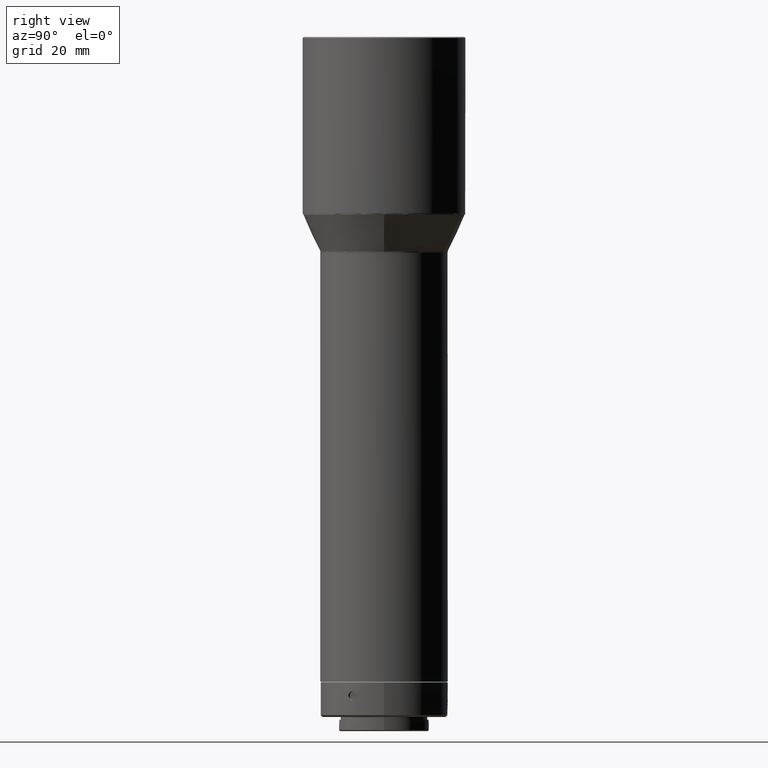
[diagram: clean part render]
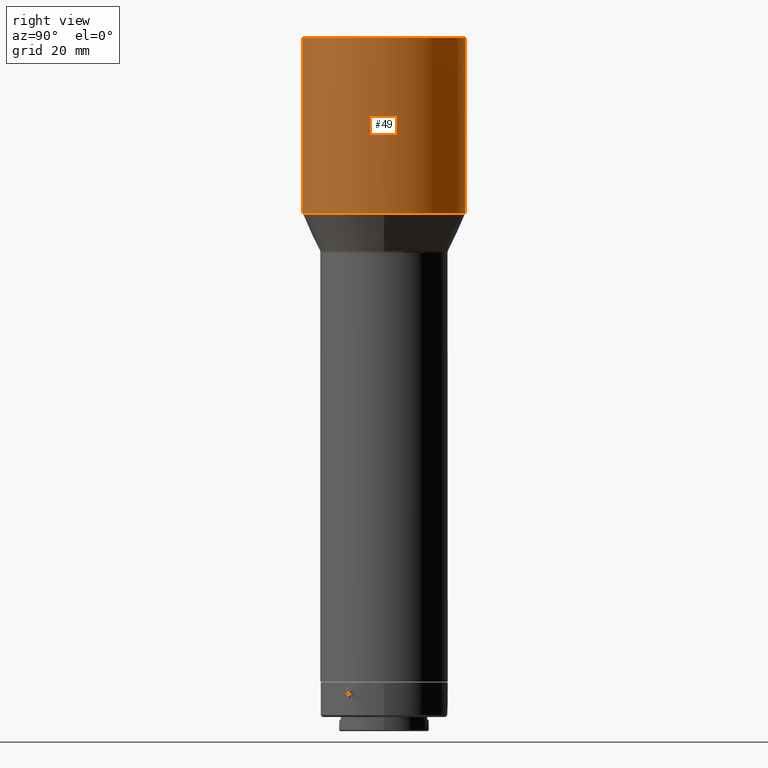
[diagram: same view with one face highlighted and labeled with its STEP entity id]
A machine part, right view. The second image highlights one B-rep face of the part: STEP entity #49.
In plain terms, the highlighted cylindrical surface (bore or boss wall) has radius 23 mm, axis along (0, -0, 1).
Its self-contained STEP definition (entity closure, byte-faithful):
#19 = EDGE_CURVE ( 'NONE', #194, #194, #786, .T. ) ;
#39 = FACE_OUTER_BOUND ( 'NONE', #248, .T. ) ;
#49 = ADVANCED_FACE ( 'NONE', ( #602, #39 ), #768, .T. ) ;
#62 = AXIS2_PLACEMENT_3D ( 'NONE', #597, #269, #655 ) ;
#77 = DIRECTION ( 'NONE',  ( -5.551115123125790098E-17, 3.053113317719188375E-16, -1.000000000000000000 ) ) ;
#78 = CARTESIAN_POINT ( 'NONE',  ( -7.228811143606403814E-14, -23.00000000000008527, -610.2999999999999545 ) ) ;
#150 = AXIS2_PLACEMENT_3D ( 'NONE', #710, #77, #260 ) ;
#194 = VERTEX_POINT ( 'NONE', #78 ) ;
#248 = EDGE_LOOP ( 'NONE', ( #517 ) ) ;
#260 = DIRECTION ( 'NONE',  ( -1.000000000000000000, -5.551115123125787632E-17, 0.000000000000000000 ) ) ;
#267 = VERTEX_POINT ( 'NONE', #386 ) ;
#269 = DIRECTION ( 'NONE',  ( -5.551115123125790098E-17, 3.053113317719188375E-16, -1.000000000000000000 ) ) ;
#282 = DIRECTION ( 'NONE',  ( 0.000000000000000000, -1.000000000000000000, 0.000000000000000000 ) ) ;
#313 = EDGE_LOOP ( 'NONE', ( #758 ) ) ;
#386 = CARTESIAN_POINT ( 'NONE',  ( -23.00000000000007461, -3.834837367334569765E-14, -659.7783053373570965 ) ) ;
#458 = EDGE_CURVE ( 'NONE', #267, #267, #495, .T. ) ;
#495 = CIRCLE ( 'NONE', #150, 23.00000000000000000 ) ;
#517 = ORIENTED_EDGE ( 'NONE', *, *, #458, .F. ) ;
#542 = DIRECTION ( 'NONE',  ( 5.551115123125790098E-17, -3.053113317719188375E-16, 1.000000000000000000 ) ) ;
#597 = CARTESIAN_POINT ( 'NONE',  ( -7.228811143606403814E-14, -5.217790449139287757E-14, -610.2999999999999545 ) ) ;
#602 = FACE_OUTER_BOUND ( 'NONE', #313, .T. ) ;
#655 = DIRECTION ( 'NONE',  ( 0.000000000000000000, -1.000000000000000000, 0.000000000000000000 ) ) ;
#663 = AXIS2_PLACEMENT_3D ( 'NONE', #781, #542, #282 ) ;
#710 = CARTESIAN_POINT ( 'NONE',  ( -7.503470912631242177E-14, -3.707161719502676762E-14, -659.7783053373570965 ) ) ;
#758 = ORIENTED_EDGE ( 'NONE', *, *, #19, .T. ) ;
#768 = CYLINDRICAL_SURFACE ( 'NONE', #663, 23.00000000000003553 ) ;
#781 = CARTESIAN_POINT ( 'NONE',  ( -7.227145809069466332E-14, -5.226949789092443910E-14, -610.0000000000000000 ) ) ;
#786 = CIRCLE ( 'NONE', #62, 23.00000000000003553 ) ;